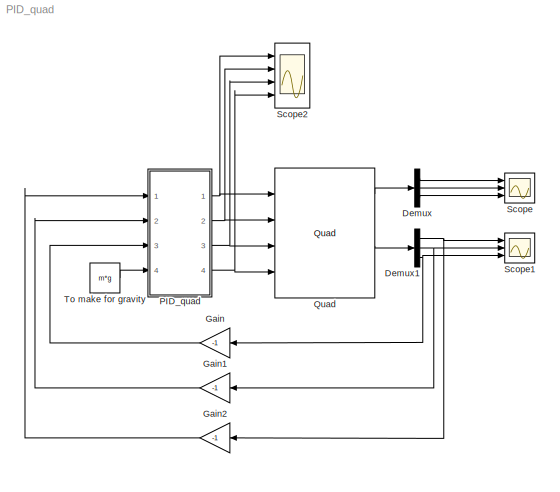
MODEL PID_quad
KIND model
BLOCK [Demux] Demux
  DisplayOption = bar
  Outputs = 3
  Ports = [1, 3]
  SID = 197
BLOCK [Demux] Demux1
  DisplayOption = bar
  Outputs = 3
  Ports = [1, 3]
  SID = 198
BLOCK [Gain] Gain
  Gain = -1
  OutDataTypeStr = Inherit: Inherit via internal rule
  ParamDataTypeStr = Inherit: Inherit via internal rule
  SID = 181
  SaturateOnIntegerOverflow = off
BLOCK [Gain] Gain1
  Gain = -1
  OutDataTypeStr = Inherit: Inherit via internal rule
  ParamDataTypeStr = Inherit: Inherit via internal rule
  SID = 182
  SaturateOnIntegerOverflow = off
BLOCK [Gain] Gain2
  Gain = -1
  OutDataTypeStr = Inherit: Inherit via internal rule
  ParamDataTypeStr = Inherit: Inherit via internal rule
  SID = 183
  SaturateOnIntegerOverflow = off
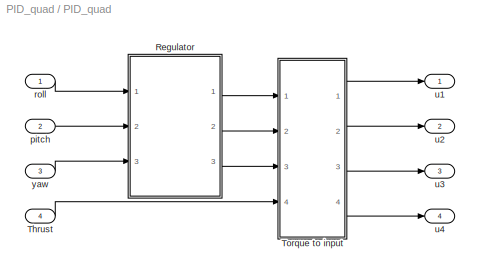
BLOCK [SubSystem] PID_quad
  FunctionWithSeparateData = off
  MaskHideContents = off
  MinAlgLoopOccurrences = off
  Opaque = off
  Ports = [4, 4]
  PropExecContextOutsideSubsystem = off
  RTWSystemCode = Auto
  RequestExecContextInheritance = off
  SID = 167
BLOCK [Outport] PID_quad/ u1
  IconDisplay = Port number
  SID = 169
BLOCK [Outport] PID_quad/ u2
  IconDisplay = Port number
  Port = 2
  SID = 171
BLOCK [Outport] PID_quad/ u3
  IconDisplay = Port number
  Port = 3
  SID = 173
BLOCK [Outport] PID_quad/ u4
  IconDisplay = Port number
  Port = 4
  SID = 175
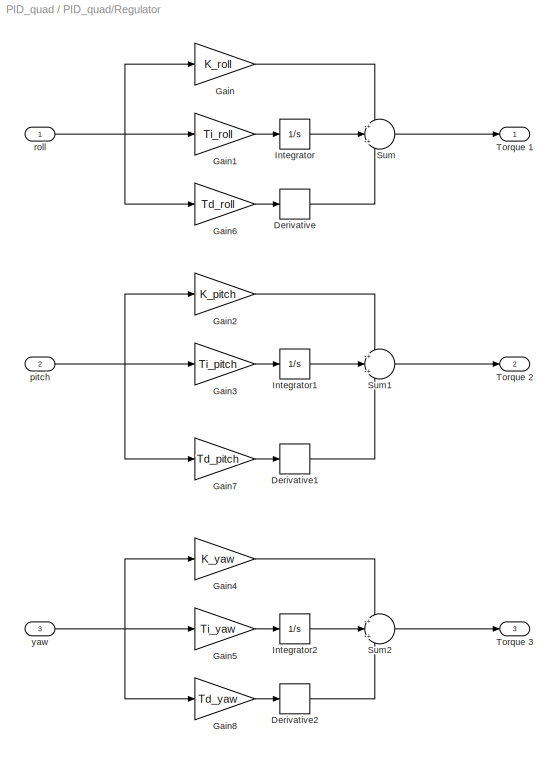
BLOCK [SubSystem] PID_quad/Regulator
  FunctionWithSeparateData = off
  MaskHideContents = off
  MinAlgLoopOccurrences = off
  Opaque = off
  Ports = [3, 3]
  PropExecContextOutsideSubsystem = off
  RTWSystemCode = Auto
  RequestExecContextInheritance = off
  SID = 120
BLOCK [Outport] PID_quad/Regulator/ Torque 1
  IconDisplay = Port number
  SID = 122
BLOCK [Outport] PID_quad/Regulator/ Torque 2
  IconDisplay = Port number
  Port = 2
  SID = 124
BLOCK [Outport] PID_quad/Regulator/ Torque 3
  IconDisplay = Port number
  Port = 3
  SID = 125
BLOCK [Derivative] PID_quad/Regulator/Derivative
  SID = 186
BLOCK [Derivative] PID_quad/Regulator/Derivative1
  SID = 190
BLOCK [Derivative] PID_quad/Regulator/Derivative2
  SID = 192
BLOCK [Gain] PID_quad/Regulator/Gain
  Gain = K_roll
  OutDataTypeStr = Inherit: Inherit via internal rule
  ParamDataTypeStr = Inherit: Inherit via internal rule
  SID = 139
  SaturateOnIntegerOverflow = off
BLOCK [Gain] PID_quad/Regulator/Gain1
  Gain = Ti_roll
  OutDataTypeStr = Inherit: Inherit via internal rule
  ParamDataTypeStr = Inherit: Inherit via internal rule
  SID = 141
  SaturateOnIntegerOverflow = off
BLOCK [Gain] PID_quad/Regulator/Gain2
  Gain = K_pitch
  OutDataTypeStr = Inherit: Inherit via internal rule
  ParamDataTypeStr = Inherit: Inherit via internal rule
  SID = 142
  SaturateOnIntegerOverflow = off
BLOCK [Gain] PID_quad/Regulator/Gain3
  Gain = Ti_pitch
  OutDataTypeStr = Inherit: Inherit via internal rule
  ParamDataTypeStr = Inherit: Inherit via internal rule
  SID = 143
  SaturateOnIntegerOverflow = off
BLOCK [Gain] PID_quad/Regulator/Gain4
  Gain = K_yaw
  OutDataTypeStr = Inherit: Inherit via internal rule
  ParamDataTypeStr = Inherit: Inherit via internal rule
  SID = 146
  SaturateOnIntegerOverflow = off
BLOCK [Gain] PID_quad/Regulator/Gain5
  Gain = Ti_yaw
  OutDataTypeStr = Inherit: Inherit via internal rule
  ParamDataTypeStr = Inherit: Inherit via internal rule
  SID = 147
  SaturateOnIntegerOverflow = off
BLOCK [Gain] PID_quad/Regulator/Gain6
  Gain = Td_roll
  OutDataTypeStr = Inherit: Inherit via internal rule
  ParamDataTypeStr = Inherit: Inherit via internal rule
  SID = 187
  SaturateOnIntegerOverflow = off
BLOCK [Gain] PID_quad/Regulator/Gain7
  Gain = Td_pitch
  OutDataTypeStr = Inherit: Inherit via internal rule
  ParamDataTypeStr = Inherit: Inherit via internal rule
  SID = 191
  SaturateOnIntegerOverflow = off
BLOCK [Gain] PID_quad/Regulator/Gain8
  Gain = Td_yaw
  OutDataTypeStr = Inherit: Inherit via internal rule
  ParamDataTypeStr = Inherit: Inherit via internal rule
  SID = 193
  SaturateOnIntegerOverflow = off
BLOCK [Integrator] PID_quad/Regulator/Integrator
  Ports = [1, 1]
  SID = 140
BLOCK [Integrator] PID_quad/Regulator/Integrator1
  Ports = [1, 1]
  SID = 144
BLOCK [Integrator] PID_quad/Regulator/Integrator2
  Ports = [1, 1]
  SID = 148
BLOCK [Sum] PID_quad/Regulator/Sum
  IconShape = round
  InputSameDT = off
  Inputs = +|+|+
  OutDataTypeStr = Inherit: Inherit via internal rule
  Ports = [3, 1]
  SID = 138
  SaturateOnIntegerOverflow = off
BLOCK [Sum] PID_quad/Regulator/Sum1
  IconShape = round
  InputSameDT = off
  Inputs = +|+|+
  OutDataTypeStr = Inherit: Inherit via internal rule
  Ports = [3, 1]
  SID = 188
  SaturateOnIntegerOverflow = off
BLOCK [Sum] PID_quad/Regulator/Sum2
  IconShape = round
  InputSameDT = off
  Inputs = +|+|+
  OutDataTypeStr = Inherit: Inherit via internal rule
  Ports = [3, 1]
  SID = 189
  SaturateOnIntegerOverflow = off
BLOCK [Inport] PID_quad/Regulator/pitch
  IconDisplay = Port number
  Port = 2
  SID = 123
BLOCK [Inport] PID_quad/Regulator/roll
  IconDisplay = Port number
  SID = 121
BLOCK [Inport] PID_quad/Regulator/yaw
  IconDisplay = Port number
  Port = 3
  SID = 126
BLOCK [Inport] PID_quad/Thrust
  IconDisplay = Port number
  Port = 4
  SID = 174
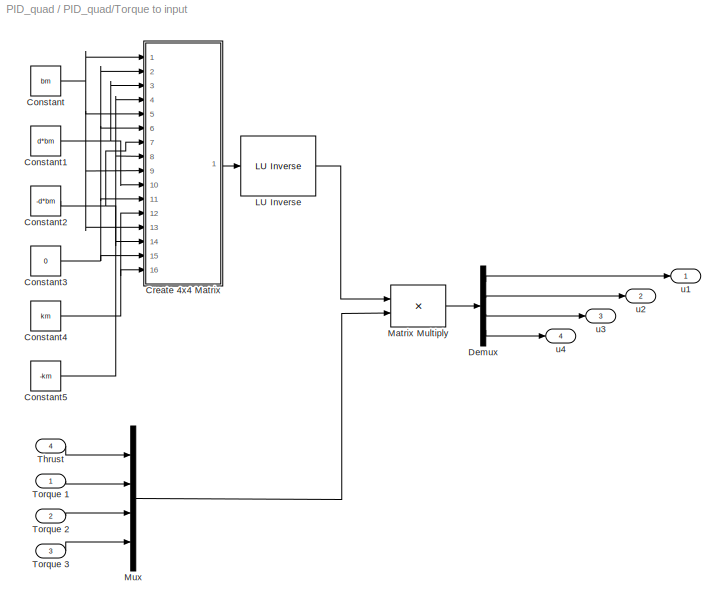
BLOCK [SubSystem] PID_quad/Torque to input
  FunctionWithSeparateData = off
  MaskHideContents = off
  MinAlgLoopOccurrences = off
  Opaque = off
  Ports = [4, 4]
  PropExecContextOutsideSubsystem = off
  RTWSystemCode = Auto
  RequestExecContextInheritance = off
  SID = 130
BLOCK [Reference] PID_quad/Torque to input/ LU Inverse  REF=dspinverses/ LU Inverse
  Ports = [1, 1]
  SID = 163
  SourceBlock = dspinverses/ LU Inverse
  SourceType = LU Inverse
BLOCK [Outport] PID_quad/Torque to input/ u1
  IconDisplay = Port number
  SID = 131
BLOCK [Outport] PID_quad/Torque to input/ u2
  IconDisplay = Port number
  Port = 2
  SID = 133
BLOCK [Outport] PID_quad/Torque to input/ u3
  IconDisplay = Port number
  Port = 3
  SID = 135
BLOCK [Outport] PID_quad/Torque to input/ u4
  IconDisplay = Port number
  Port = 4
  SID = 137
BLOCK [Constant] PID_quad/Torque to input/Constant
  SID = 156
  Value = bm
BLOCK [Constant] PID_quad/Torque to input/Constant1
  SID = 157
  Value = d*bm
BLOCK [Constant] PID_quad/Torque to input/Constant2
  SID = 158
  Value = -d*bm
BLOCK [Constant] PID_quad/Torque to input/Constant3
  SID = 159
  Value = 0
BLOCK [Constant] PID_quad/Torque to input/Constant4
  SID = 160
  Value = km
BLOCK [Constant] PID_quad/Torque to input/Constant5
  SID = 161
  Value = -km
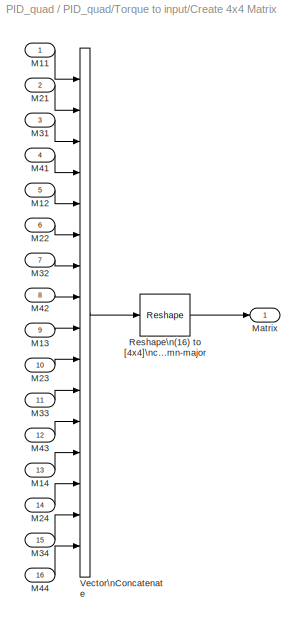
BLOCK [SubSystem] PID_quad/Torque to input/Create 4x4 Matrix
  AncestorBlock = aerolibutil/Create 3x3 Matrix
  FunctionWithSeparateData = off
  MaskHideContents = off
  MinAlgLoopOccurrences = off
  Opaque = off
  Ports = [16, 1]
  PropExecContextOutsideSubsystem = off
  RTWSystemCode = Auto
  RequestExecContextInheritance = off
  SID = 155
BLOCK [Inport] PID_quad/Torque to input/Create 4x4 Matrix/M11
  IconDisplay = Port number
  PortDimensions = 1
  SID = 155:138
BLOCK [Inport] PID_quad/Torque to input/Create 4x4 Matrix/M12
  IconDisplay = Port number
  Port = 5
  PortDimensions = 1
  SID = 155:153
BLOCK [Inport] PID_quad/Torque to input/Create 4x4 Matrix/M13
  IconDisplay = Port number
  Port = 9
  PortDimensions = 1
  SID = 155:152
BLOCK [Inport] PID_quad/Torque to input/Create 4x4 Matrix/M14
  IconDisplay = Port number
  Port = 13
  PortDimensions = 1
  SID = 155:159
BLOCK [Inport] PID_quad/Torque to input/Create 4x4 Matrix/M21
  IconDisplay = Port number
  Port = 2
  PortDimensions = 1
  SID = 155:141
BLOCK [Inport] PID_quad/Torque to input/Create 4x4 Matrix/M22
  IconDisplay = Port number
  Port = 6
  PortDimensions = 1
  SID = 155:154
BLOCK [Inport] PID_quad/Torque to input/Create 4x4 Matrix/M23
  IconDisplay = Port number
  Port = 10
  PortDimensions = 1
  SID = 155:151
BLOCK [Inport] PID_quad/Torque to input/Create 4x4 Matrix/M24
  IconDisplay = Port number
  Port = 14
  PortDimensions = 1
  SID = 155:160
BLOCK [Inport] PID_quad/Torque to input/Create 4x4 Matrix/M31
  IconDisplay = Port number
  Port = 3
  PortDimensions = 1
  SID = 155:144
BLOCK [Inport] PID_quad/Torque to input/Create 4x4 Matrix/M32
  IconDisplay = Port number
  Port = 7
  PortDimensions = 1
  SID = 155:155
BLOCK [Inport] PID_quad/Torque to input/Create 4x4 Matrix/M33
  IconDisplay = Port number
  Port = 11
  PortDimensions = 1
  SID = 155:150
BLOCK [Inport] PID_quad/Torque to input/Create 4x4 Matrix/M34
  IconDisplay = Port number
  Port = 15
  PortDimensions = 1
  SID = 155:161
BLOCK [Inport] PID_quad/Torque to input/Create 4x4 Matrix/M41
  IconDisplay = Port number
  Port = 4
  PortDimensions = 1
  SID = 155:156
BLOCK [Inport] PID_quad/Torque to input/Create 4x4 Matrix/M42
  IconDisplay = Port number
  Port = 8
  PortDimensions = 1
  SID = 155:157
BLOCK [Inport] PID_quad/Torque to input/Create 4x4 Matrix/M43
  IconDisplay = Port number
  Port = 12
  PortDimensions = 1
  SID = 155:158
BLOCK [Inport] PID_quad/Torque to input/Create 4x4 Matrix/M44
  IconDisplay = Port number
  Port = 16
  PortDimensions = 1
  SID = 155:162
BLOCK [Outport] PID_quad/Torque to input/Create 4x4 Matrix/Matrix
  IconDisplay = Port number
  PortDimensions = [4 4]
  SID = 155:149
BLOCK [Reshape] PID_quad/Torque to input/Create 4x4 Matrix/Reshape\n(16) to [4x4]\ncolumn-major
  OutputDimensionality = Customize
  OutputDimensions = [4,4]
  Ports = [1, 1]
  SID = 155:147
BLOCK [Concatenate] PID_quad/Torque to input/Create 4x4 Matrix/Vector\nConcatenate
  NumInputs = 16
  Ports = [16, 1]
  SID = 155:148
BLOCK [Demux] PID_quad/Torque to input/Demux
  DisplayOption = bar
  Ports = [1, 4]
  SID = 165
BLOCK [Product] PID_quad/Torque to input/Matrix Multiply
  InputSameDT = off
  Multiplication = Matrix(*)
  OutDataTypeStr = Inherit: Inherit via internal rule
  Ports = [2, 1]
  RndMeth = Floor
  SID = 164
  SaturateOnIntegerOverflow = off
BLOCK [Mux] PID_quad/Torque to input/Mux
  DisplayOption = bar
  Ports = [4, 1]
  SID = 151
BLOCK [Inport] PID_quad/Torque to input/Thrust
  IconDisplay = Port number
  Port = 4
  SID = 150
BLOCK [Inport] PID_quad/Torque to input/Torque 1
  IconDisplay = Port number
  SID = 132
BLOCK [Inport] PID_quad/Torque to input/Torque 2
  IconDisplay = Port number
  Port = 2
  SID = 134
BLOCK [Inport] PID_quad/Torque to input/Torque 3
  IconDisplay = Port number
  Port = 3
  SID = 136
BLOCK [Inport] PID_quad/pitch
  IconDisplay = Port number
  Port = 2
  SID = 170
BLOCK [Inport] PID_quad/roll
  IconDisplay = Port number
  SID = 168
BLOCK [Inport] PID_quad/yaw
  IconDisplay = Port number
  Port = 3
  SID = 172
BLOCK [Reference] Quad  REF=quad_lib/Quad  (lib defined in mdl_3e84e055d8f3)
  Ports = [4, 4]
  SID = 196
  SourceBlock = quad_lib/Quad
  SourceType = SubSystem
BLOCK [Scope] Scope
  DataFormat = StructureWithTime
  Floating = off
  LimitDataPoints = off
  NumInputPorts = 3
  Ports = [3]
  SID = 180
  SampleTime = 0
  ShowLegends = off
  YMax = 5~5~5
  YMin = -5~-5~-5
BLOCK [Scope] Scope1
  DataFormat = StructureWithTime
  Floating = off
  LimitDataPoints = off
  NumInputPorts = 3
  Ports = [3]
  SID = 185
  SampleTime = 0
  SaveName = ScopeData1
  ShowLegends = off
  TimeRange = 100
  YMax = 4~2~4
  YMin = -4~-2~-4
  ZoomMode = xonly
BLOCK [Scope] Scope2
  DataFormat = StructureWithTime
  Floating = off
  LimitDataPoints = off
  NumInputPorts = 4
  Ports = [4]
  SID = 194
  SampleTime = 0
  SaveName = ScopeData2
  ShowLegends = off
  TimeRange = 10
  YMax = 5000000000000~5000000000000~10000000000000~10000000000000
  YMin = -10000000000000~-10000000000000~-5000000000000~-5000000000000
  ZoomMode = yonly
BLOCK [Constant] To make for gravity
  SID = 184
  Value = m*g
NET Demux1:1 -> Gain2:1, Scope1:1
NET Demux1:2 -> Gain1:1, Scope1:2
NET Demux1:3 -> Gain:1, Scope1:3
LINE Demux:1 -> Scope:1
LINE Demux:2 -> Scope:2
LINE Demux:3 -> Scope:3
LINE Gain1:1 -> PID_quad:2
LINE Gain2:1 -> PID_quad:1
LINE Gain:1 -> PID_quad:3
LINE PID_quad/Regulator/Derivative1:1 -> PID_quad/Regulator/Sum1:3
LINE PID_quad/Regulator/Derivative2:1 -> PID_quad/Regulator/Sum2:3
LINE PID_quad/Regulator/Derivative:1 -> PID_quad/Regulator/Sum:3
LINE PID_quad/Regulator/Gain1:1 -> PID_quad/Regulator/Integrator:1
LINE PID_quad/Regulator/Gain2:1 -> PID_quad/Regulator/Sum1:1
LINE PID_quad/Regulator/Gain3:1 -> PID_quad/Regulator/Integrator1:1
LINE PID_quad/Regulator/Gain4:1 -> PID_quad/Regulator/Sum2:1
LINE PID_quad/Regulator/Gain5:1 -> PID_quad/Regulator/Integrator2:1
LINE PID_quad/Regulator/Gain6:1 -> PID_quad/Regulator/Derivative:1
LINE PID_quad/Regulator/Gain7:1 -> PID_quad/Regulator/Derivative1:1
LINE PID_quad/Regulator/Gain8:1 -> PID_quad/Regulator/Derivative2:1
LINE PID_quad/Regulator/Gain:1 -> PID_quad/Regulator/Sum:1
LINE PID_quad/Regulator/Integrator1:1 -> PID_quad/Regulator/Sum1:2
LINE PID_quad/Regulator/Integrator2:1 -> PID_quad/Regulator/Sum2:2
LINE PID_quad/Regulator/Integrator:1 -> PID_quad/Regulator/Sum:2
LINE PID_quad/Regulator/Sum1:1 -> PID_quad/Regulator/ Torque 2:1
LINE PID_quad/Regulator/Sum2:1 -> PID_quad/Regulator/ Torque 3:1
LINE PID_quad/Regulator/Sum:1 -> PID_quad/Regulator/ Torque 1:1
NET PID_quad/Regulator/pitch:1 -> PID_quad/Regulator/Gain2:1, PID_quad/Regulator/Gain3:1, PID_quad/Regulator/Gain7:1
NET PID_quad/Regulator/roll:1 -> PID_quad/Regulator/Gain1:1, PID_quad/Regulator/Gain6:1, PID_quad/Regulator/Gain:1
NET PID_quad/Regulator/yaw:1 -> PID_quad/Regulator/Gain4:1, PID_quad/Regulator/Gain5:1, PID_quad/Regulator/Gain8:1
LINE PID_quad/Regulator:1 -> PID_quad/Torque to input:1
LINE PID_quad/Regulator:2 -> PID_quad/Torque to input:2
LINE PID_quad/Regulator:3 -> PID_quad/Torque to input:3
LINE PID_quad/Thrust:1 -> PID_quad/Torque to input:4
LINE PID_quad/Torque to input/ LU Inverse:1 -> PID_quad/Torque to input/Matrix Multiply:1
NET PID_quad/Torque to input/Constant1:1 -> PID_quad/Torque to input/Create 4x4 Matrix:10, PID_quad/Torque to input/Create 4x4 Matrix:3
NET PID_quad/Torque to input/Constant2:1 -> PID_quad/Torque to input/Create 4x4 Matrix:14, PID_quad/Torque to input/Create 4x4 Matrix:7
NET PID_quad/Torque to input/Constant3:1 -> PID_quad/Torque to input/Create 4x4 Matrix:11, PID_quad/Torque to input/Create 4x4 Matrix:15, PID_quad/Torque to input/Create 4x4 Matrix:2, PID_quad/Torque to input/Create 4x4 Matrix:6
NET PID_quad/Torque to input/Constant4:1 -> PID_quad/Torque to input/Create 4x4 Matrix:12, PID_quad/Torque to input/Create 4x4 Matrix:16
NET PID_quad/Torque to input/Constant5:1 -> PID_quad/Torque to input/Create 4x4 Matrix:4, PID_quad/Torque to input/Create 4x4 Matrix:8
NET PID_quad/Torque to input/Constant:1 -> PID_quad/Torque to input/Create 4x4 Matrix:1, PID_quad/Torque to input/Create 4x4 Matrix:13, PID_quad/Torque to input/Create 4x4 Matrix:5, PID_quad/Torque to input/Create 4x4 Matrix:9
LINE PID_quad/Torque to input/Create 4x4 Matrix/M11:1 -> PID_quad/Torque to input/Create 4x4 Matrix/Vector\nConcatenate:1
LINE PID_quad/Torque to input/Create 4x4 Matrix/M12:1 -> PID_quad/Torque to input/Create 4x4 Matrix/Vector\nConcatenate:5
LINE PID_quad/Torque to input/Create 4x4 Matrix/M13:1 -> PID_quad/Torque to input/Create 4x4 Matrix/Vector\nConcatenate:9
LINE PID_quad/Torque to input/Create 4x4 Matrix/M14:1 -> PID_quad/Torque to input/Create 4x4 Matrix/Vector\nConcatenate:13
LINE PID_quad/Torque to input/Create 4x4 Matrix/M21:1 -> PID_quad/Torque to input/Create 4x4 Matrix/Vector\nConcatenate:2
LINE PID_quad/Torque to input/Create 4x4 Matrix/M22:1 -> PID_quad/Torque to input/Create 4x4 Matrix/Vector\nConcatenate:6
LINE PID_quad/Torque to input/Create 4x4 Matrix/M23:1 -> PID_quad/Torque to input/Create 4x4 Matrix/Vector\nConcatenate:10
LINE PID_quad/Torque to input/Create 4x4 Matrix/M24:1 -> PID_quad/Torque to input/Create 4x4 Matrix/Vector\nConcatenate:14
LINE PID_quad/Torque to input/Create 4x4 Matrix/M31:1 -> PID_quad/Torque to input/Create 4x4 Matrix/Vector\nConcatenate:3
LINE PID_quad/Torque to input/Create 4x4 Matrix/M32:1 -> PID_quad/Torque to input/Create 4x4 Matrix/Vector\nConcatenate:7
LINE PID_quad/Torque to input/Create 4x4 Matrix/M33:1 -> PID_quad/Torque to input/Create 4x4 Matrix/Vector\nConcatenate:11
LINE PID_quad/Torque to input/Create 4x4 Matrix/M34:1 -> PID_quad/Torque to input/Create 4x4 Matrix/Vector\nConcatenate:15
LINE PID_quad/Torque to input/Create 4x4 Matrix/M41:1 -> PID_quad/Torque to input/Create 4x4 Matrix/Vector\nConcatenate:4
LINE PID_quad/Torque to input/Create 4x4 Matrix/M42:1 -> PID_quad/Torque to input/Create 4x4 Matrix/Vector\nConcatenate:8
LINE PID_quad/Torque to input/Create 4x4 Matrix/M43:1 -> PID_quad/Torque to input/Create 4x4 Matrix/Vector\nConcatenate:12
LINE PID_quad/Torque to input/Create 4x4 Matrix/M44:1 -> PID_quad/Torque to input/Create 4x4 Matrix/Vector\nConcatenate:16
LINE PID_quad/Torque to input/Create 4x4 Matrix/Reshape\n(16) to [4x4]\ncolumn-major:1 -> PID_quad/Torque to input/Create 4x4 Matrix/Matrix:1
LINE PID_quad/Torque to input/Create 4x4 Matrix/Vector\nConcatenate:1 -> PID_quad/Torque to input/Create 4x4 Matrix/Reshape\n(16) to [4x4]\ncolumn-major:1
LINE PID_quad/Torque to input/Create 4x4 Matrix:1 -> PID_quad/Torque to input/ LU Inverse:1
LINE PID_quad/Torque to input/Demux:1 -> PID_quad/Torque to input/ u1:1
LINE PID_quad/Torque to input/Demux:2 -> PID_quad/Torque to input/ u2:1
LINE PID_quad/Torque to input/Demux:3 -> PID_quad/Torque to input/ u3:1
LINE PID_quad/Torque to input/Demux:4 -> PID_quad/Torque to input/ u4:1
LINE PID_quad/Torque to input/Matrix Multiply:1 -> PID_quad/Torque to input/Demux:1
LINE PID_quad/Torque to input/Mux:1 -> PID_quad/Torque to input/Matrix Multiply:2
LINE PID_quad/Torque to input/Thrust:1 -> PID_quad/Torque to input/Mux:1
LINE PID_quad/Torque to input/Torque 1:1 -> PID_quad/Torque to input/Mux:2
LINE PID_quad/Torque to input/Torque 2:1 -> PID_quad/Torque to input/Mux:3
LINE PID_quad/Torque to input/Torque 3:1 -> PID_quad/Torque to input/Mux:4
LINE PID_quad/Torque to input:1 -> PID_quad/ u1:1
LINE PID_quad/Torque to input:2 -> PID_quad/ u2:1
LINE PID_quad/Torque to input:3 -> PID_quad/ u3:1
LINE PID_quad/Torque to input:4 -> PID_quad/ u4:1
LINE PID_quad/pitch:1 -> PID_quad/Regulator:2
LINE PID_quad/roll:1 -> PID_quad/Regulator:1
LINE PID_quad/yaw:1 -> PID_quad/Regulator:3
NET PID_quad:1 -> Quad:1, Scope2:1
NET PID_quad:2 -> Quad:2, Scope2:2
NET PID_quad:3 -> Quad:3, Scope2:3
NET PID_quad:4 -> Quad:4, Scope2:4
LINE Quad:1 -> Demux:1
LINE Quad:3 -> Demux1:1
LINE To make for gravity:1 -> PID_quad:4
note: NET lines group one-source signal fan-out (src -> all destinations, sorted); 1:1 wires keep LINE
